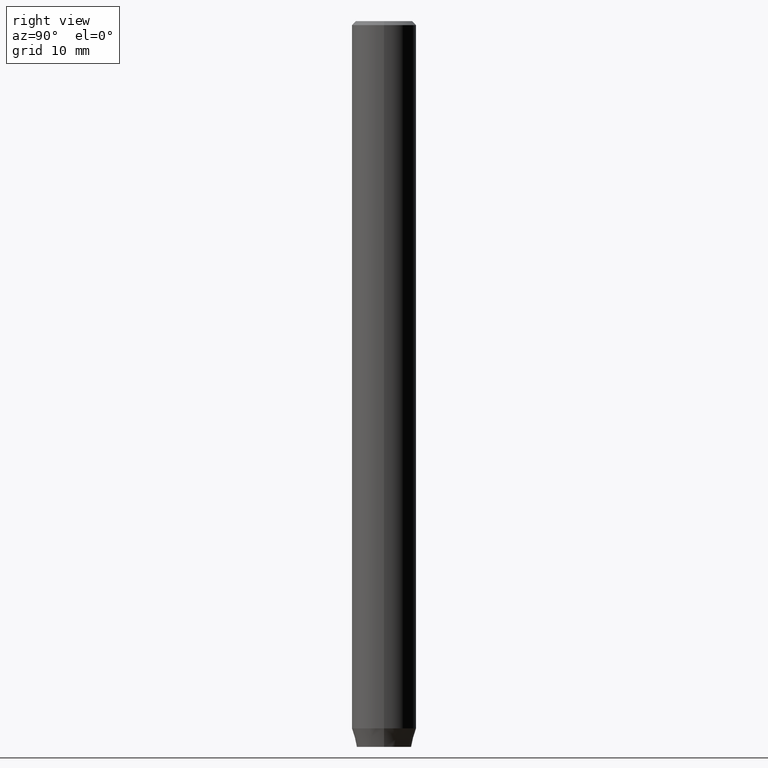
[diagram: clean part render]
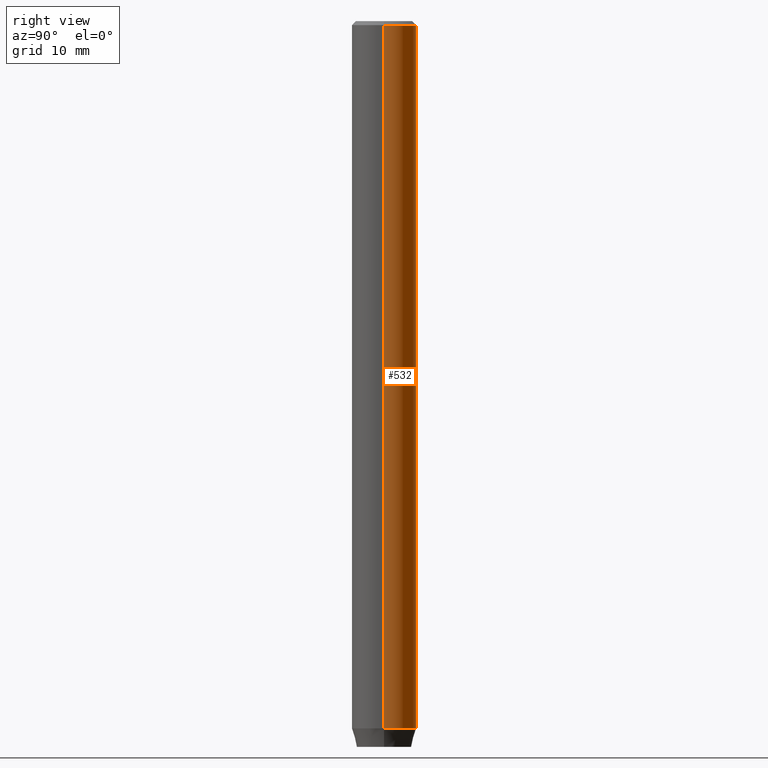
[diagram: same view with one face highlighted and labeled with its STEP entity id]
A machine part, right view. The second image highlights one B-rep face of the part: STEP entity #532.
In plain terms, the highlighted cylindrical surface (edge-blend (fillet) strip) has radius 4 mm, axis along (-0, -0, 1).
Its self-contained STEP definition (entity closure, byte-faithful):
#1 = DIRECTION ( 'NONE',  ( -0.000000000000000000, -0.000000000000000000, 1.000000000000000000 ) ) ;
#10 = CIRCLE ( 'NONE', #161, 4.000000000000000000 ) ;
#32 = DIRECTION ( 'NONE',  ( 1.000000000000000000, 0.000000000000000000, 0.000000000000000000 ) ) ;
#42 = CARTESIAN_POINT ( 'NONE',  ( -4.000000000000000000, 4.898587196589412829E-16, -0.4999999999999970024 ) ) ;
#81 = LINE ( 'NONE', #193, #419 ) ;
#91 = VERTEX_POINT ( 'NONE', #42 ) ;
#123 = CARTESIAN_POINT ( 'NONE',  ( 0.000000000000000000, 0.000000000000000000, -0.4999999999999970024 ) ) ;
#145 = LINE ( 'NONE', #452, #565 ) ;
#151 = DIRECTION ( 'NONE',  ( 1.000000000000000000, 0.000000000000000000, 0.000000000000000000 ) ) ;
#156 = ORIENTED_EDGE ( 'NONE', *, *, #458, .T. ) ;
#161 = AXIS2_PLACEMENT_3D ( 'NONE', #123, #308, #32 ) ;
#168 = ORIENTED_EDGE ( 'NONE', *, *, #328, .F. ) ;
#193 = CARTESIAN_POINT ( 'NONE',  ( -4.000000000000000000, 4.898587196589412829E-16, 0.000000000000000000 ) ) ;
#194 = DIRECTION ( 'NONE',  ( -0.000000000000000000, -0.000000000000000000, 1.000000000000000000 ) ) ;
#198 = VERTEX_POINT ( 'NONE', #331 ) ;
#224 = CIRCLE ( 'NONE', #555, 4.000000000000000000 ) ;
#236 = AXIS2_PLACEMENT_3D ( 'NONE', #248, #194, #151 ) ;
#248 = CARTESIAN_POINT ( 'NONE',  ( 0.000000000000000000, 0.000000000000000000, 0.000000000000000000 ) ) ;
#251 = EDGE_CURVE ( 'NONE', #91, #391, #10, .T. ) ;
#276 = CARTESIAN_POINT ( 'NONE',  ( 4.000000000000000000, 0.000000000000000000, -0.4999999999999970024 ) ) ;
#308 = DIRECTION ( 'NONE',  ( 0.000000000000000000, 0.000000000000000000, -1.000000000000000000 ) ) ;
#322 = CARTESIAN_POINT ( 'NONE',  ( 4.000000000000000000, 0.000000000000000000, -87.70000000000000284 ) ) ;
#323 = EDGE_CURVE ( 'NONE', #198, #91, #81, .T. ) ;
#328 = EDGE_CURVE ( 'NONE', #344, #391, #145, .T. ) ;
#331 = CARTESIAN_POINT ( 'NONE',  ( -4.000000000000000000, 4.898587196589412829E-16, -87.70000000000000284 ) ) ;
#332 = EDGE_LOOP ( 'NONE', ( #156, #574, #465, #168 ) ) ;
#344 = VERTEX_POINT ( 'NONE', #322 ) ;
#369 = CYLINDRICAL_SURFACE ( 'NONE', #236, 4.000000000000000000 ) ;
#391 = VERTEX_POINT ( 'NONE', #276 ) ;
#418 = CARTESIAN_POINT ( 'NONE',  ( 0.000000000000000000, 0.000000000000000000, -87.70000000000000284 ) ) ;
#419 = VECTOR ( 'NONE', #1, 1000.000000000000000 ) ;
#452 = CARTESIAN_POINT ( 'NONE',  ( 4.000000000000000000, 0.000000000000000000, 0.000000000000000000 ) ) ;
#458 = EDGE_CURVE ( 'NONE', #344, #198, #224, .T. ) ;
#465 = ORIENTED_EDGE ( 'NONE', *, *, #251, .T. ) ;
#472 = FACE_OUTER_BOUND ( 'NONE', #332, .T. ) ;
#504 = DIRECTION ( 'NONE',  ( -0.000000000000000000, -0.000000000000000000, 1.000000000000000000 ) ) ;
#508 = DIRECTION ( 'NONE',  ( 1.000000000000000000, 0.000000000000000000, 0.000000000000000000 ) ) ;
#532 = ADVANCED_FACE ( 'NONE', ( #472 ), #369, .T. ) ;
#555 = AXIS2_PLACEMENT_3D ( 'NONE', #418, #560, #508 ) ;
#560 = DIRECTION ( 'NONE',  ( -0.000000000000000000, -0.000000000000000000, 1.000000000000000000 ) ) ;
#565 = VECTOR ( 'NONE', #504, 1000.000000000000000 ) ;
#574 = ORIENTED_EDGE ( 'NONE', *, *, #323, .T. ) ;